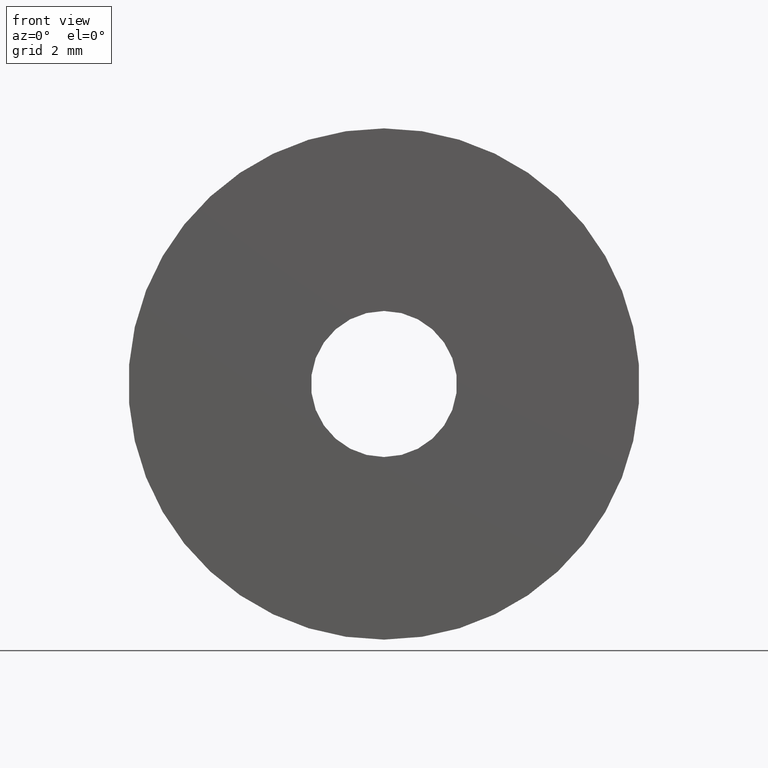
[diagram: clean part render]
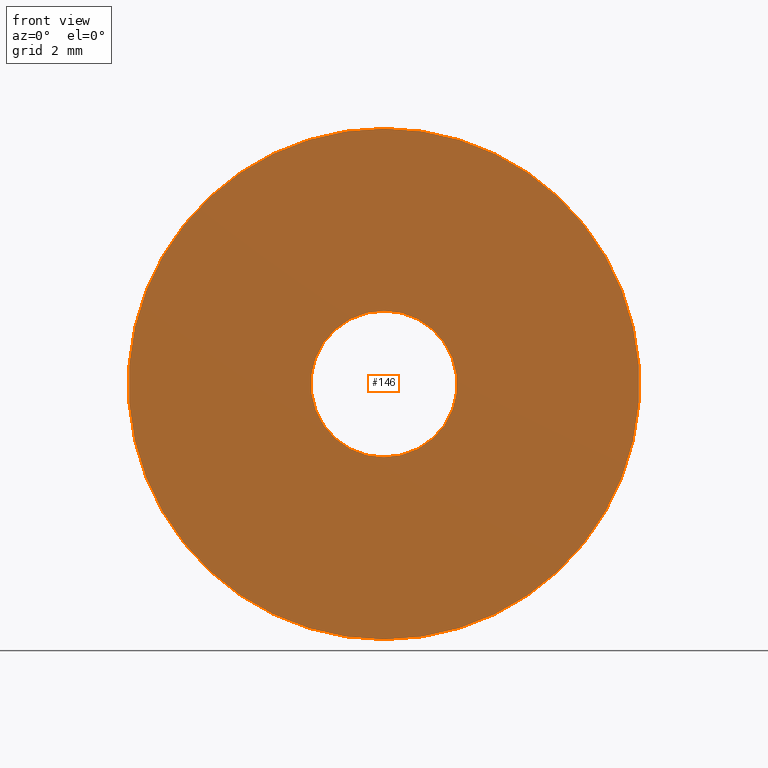
[diagram: same view with one face highlighted and labeled with its STEP entity id]
A machine part, front view. The second image highlights one B-rep face of the part: STEP entity #146.
In plain terms, the highlighted planar face has unit normal (0, 1, 0).
Its self-contained STEP definition (entity closure, byte-faithful):
#10 = DIRECTION ( 'NONE',  ( 0.0000000000000000000, 0.0000000000000000000, -1.000000000000000000 ) ) ;
#29 = DIRECTION ( 'NONE',  ( 0.0000000000000000000, -1.000000000000000000, 0.0000000000000000000 ) ) ;
#30 = CARTESIAN_POINT ( 'NONE',  ( 0.0000000000000000000, 0.0000000000000000000, 0.0000000000000000000 ) ) ;
#31 = AXIS2_PLACEMENT_3D ( 'NONE', #30, #29, #45 ) ;
#32 = CIRCLE ( 'NONE', #31, 8.750000000000000000 ) ;
#45 = DIRECTION ( 'NONE',  ( 0.0000000000000000000, 0.0000000000000000000, -1.000000000000000000 ) ) ;
#122 = EDGE_CURVE ( 'NONE', #183, #180, #32, .T. ) ;
#126 = EDGE_CURVE ( 'NONE', #179, #176, #158, .T. ) ;
#142 = EDGE_CURVE ( 'NONE', #176, #179, #232, .T. ) ;
#146 = ADVANCED_FACE ( 'NONE', ( #261, #240 ), #269, .F. ) ;
#147 = EDGE_CURVE ( 'NONE', #180, #183, #246, .T. ) ;
#148 = ORIENTED_EDGE ( 'NONE', *, *, #126, .F. ) ;
#149 = EDGE_LOOP ( 'NONE', ( #155, #156 ) ) ;
#150 = ORIENTED_EDGE ( 'NONE', *, *, #142, .F. ) ;
#155 = ORIENTED_EDGE ( 'NONE', *, *, #122, .T. ) ;
#156 = ORIENTED_EDGE ( 'NONE', *, *, #147, .T. ) ;
#158 = CIRCLE ( 'NONE', #167, 2.499999999999999600 ) ;
#165 = DIRECTION ( 'NONE',  ( 0.0000000000000000000, -1.000000000000000000, 0.0000000000000000000 ) ) ;
#166 = CARTESIAN_POINT ( 'NONE',  ( 0.0000000000000000000, 0.0000000000000000000, 0.0000000000000000000 ) ) ;
#167 = AXIS2_PLACEMENT_3D ( 'NONE', #166, #165, #10 ) ;
#176 = VERTEX_POINT ( 'NONE', #282 ) ;
#178 = EDGE_LOOP ( 'NONE', ( #148, #150 ) ) ;
#179 = VERTEX_POINT ( 'NONE', #275 ) ;
#180 = VERTEX_POINT ( 'NONE', #281 ) ;
#183 = VERTEX_POINT ( 'NONE', #253 ) ;
#229 = AXIS2_PLACEMENT_3D ( 'NONE', #267, #266, #247 ) ;
#232 = CIRCLE ( 'NONE', #270, 2.499999999999999600 ) ;
#240 = FACE_OUTER_BOUND ( 'NONE', #149, .T. ) ;
#243 = DIRECTION ( 'NONE',  ( 0.0000000000000000000, 0.0000000000000000000, -1.000000000000000000 ) ) ;
#244 = DIRECTION ( 'NONE',  ( 0.0000000000000000000, -1.000000000000000000, 0.0000000000000000000 ) ) ;
#245 = AXIS2_PLACEMENT_3D ( 'NONE', #248, #244, #243 ) ;
#246 = CIRCLE ( 'NONE', #245, 8.750000000000000000 ) ;
#247 = DIRECTION ( 'NONE',  ( 0.0000000000000000000, 0.0000000000000000000, 1.000000000000000000 ) ) ;
#248 = CARTESIAN_POINT ( 'NONE',  ( 0.0000000000000000000, 0.0000000000000000000, 0.0000000000000000000 ) ) ;
#253 = CARTESIAN_POINT ( 'NONE',  ( 0.0000000000000000000, 0.0000000000000000000, -8.750000000000000000 ) ) ;
#258 = DIRECTION ( 'NONE',  ( 0.0000000000000000000, -1.000000000000000000, 0.0000000000000000000 ) ) ;
#261 = FACE_BOUND ( 'NONE', #178, .T. ) ;
#263 = DIRECTION ( 'NONE',  ( 0.0000000000000000000, 0.0000000000000000000, -1.000000000000000000 ) ) ;
#266 = DIRECTION ( 'NONE',  ( 0.0000000000000000000, 1.000000000000000000, 0.0000000000000000000 ) ) ;
#267 = CARTESIAN_POINT ( 'NONE',  ( -2.499999999999946700, 0.0000000000000000000, 0.0000000000000000000 ) ) ;
#268 = CARTESIAN_POINT ( 'NONE',  ( 0.0000000000000000000, 0.0000000000000000000, 0.0000000000000000000 ) ) ;
#269 = PLANE ( 'NONE',  #229 ) ;
#270 = AXIS2_PLACEMENT_3D ( 'NONE', #268, #258, #263 ) ;
#275 = CARTESIAN_POINT ( 'NONE',  ( 0.0000000000000000000, 0.0000000000000000000, -2.499999999999999600 ) ) ;
#281 = CARTESIAN_POINT ( 'NONE',  ( 1.071565949253934100E-015, 0.0000000000000000000, 8.750000000000000000 ) ) ;
#282 = CARTESIAN_POINT ( 'NONE',  ( 3.061616997868382600E-016, 0.0000000000000000000, 2.499999999999999600 ) ) ;